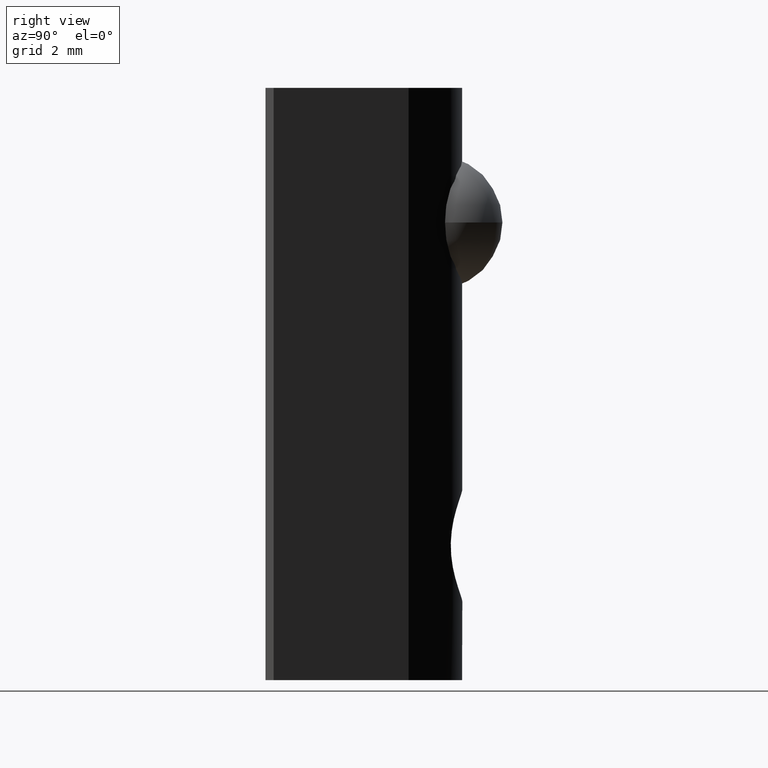
[diagram: clean part render]
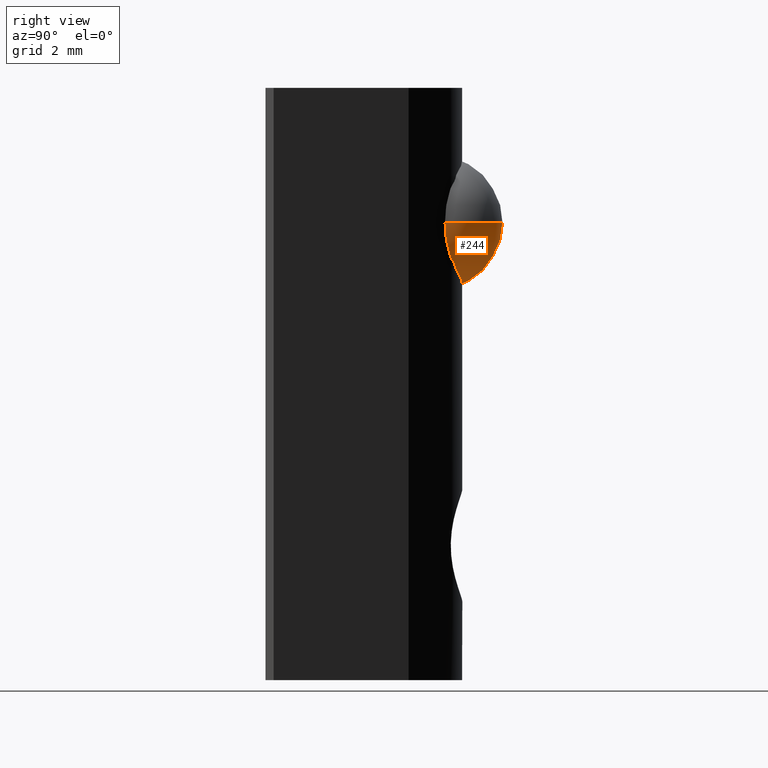
[diagram: same view with one face highlighted and labeled with its STEP entity id]
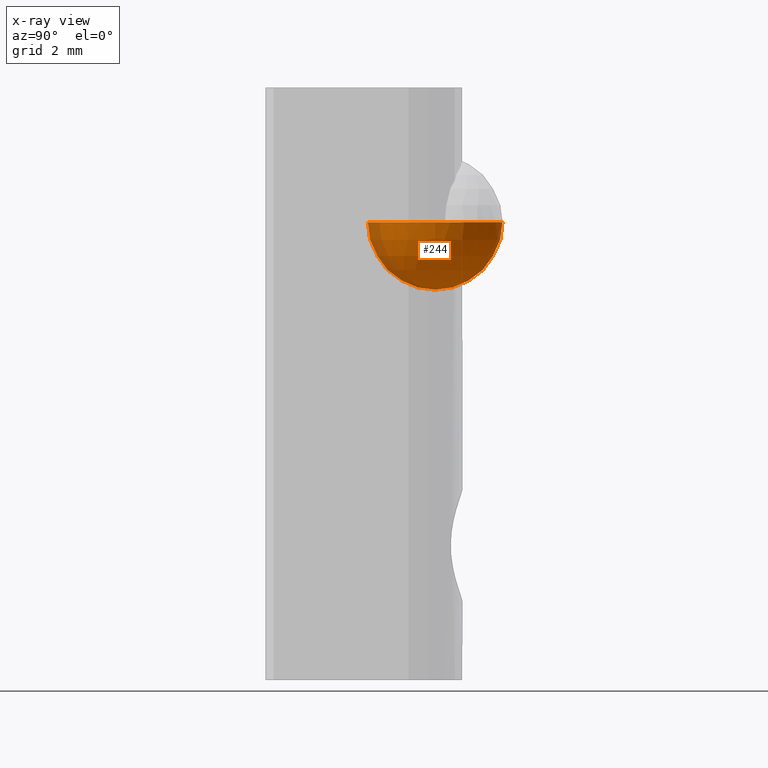
[diagram: x-ray of the same camera — body ghosted, the highlighted face saturated]
A machine part, right view. The second image highlights one B-rep face of the part: STEP entity #244.
The next image is the same camera in x-ray: the body ghosted, the highlighted face saturated — about 9% of this face is hidden behind the body in this view.
In plain terms, the highlighted spherical surface has radius 2.5 mm.
Its self-contained STEP definition (entity closure, byte-faithful):
#61 = ORIENTED_EDGE ( 'NONE', *, *, #406, .F. ) ;
#73 = DIRECTION ( 'NONE',  ( 1.000000000000000000, 0.0000000000000000000, 0.0000000000000000000 ) ) ;
#126 = DIRECTION ( 'NONE',  ( 0.0000000000000000000, 0.0000000000000000000, 1.000000000000000000 ) ) ;
#166 = CIRCLE ( 'NONE', #261, 2.500000000000000000 ) ;
#200 = VERTEX_POINT ( 'NONE', #607 ) ;
#244 = ADVANCED_FACE ( 'NONE', ( #710 ), #543, .T. ) ;
#261 = AXIS2_PLACEMENT_3D ( 'NONE', #450, #763, #319 ) ;
#319 = DIRECTION ( 'NONE',  ( -1.000000000000000000, 0.0000000000000000000, -1.224646799147353200E-016 ) ) ;
#389 = DIRECTION ( 'NONE',  ( 1.000000000000000000, 0.0000000000000000000, 0.0000000000000000000 ) ) ;
#406 = EDGE_CURVE ( 'NONE', #200, #504, #520, .T. ) ;
#424 = EDGE_CURVE ( 'NONE', #200, #504, #166, .T. ) ;
#447 = AXIS2_PLACEMENT_3D ( 'NONE', #640, #126, #73 ) ;
#450 = CARTESIAN_POINT ( 'NONE',  ( 0.0000000000000000000, 0.0000000000000000000, 0.0000000000000000000 ) ) ;
#504 = VERTEX_POINT ( 'NONE', #663 ) ;
#520 = CIRCLE ( 'NONE', #447, 2.500000000000000000 ) ;
#543 = SPHERICAL_SURFACE ( 'NONE', #554, 2.500000000000000000 ) ;
#554 = AXIS2_PLACEMENT_3D ( 'NONE', #629, #625, #389 ) ;
#555 = EDGE_LOOP ( 'NONE', ( #61, #585 ) ) ;
#585 = ORIENTED_EDGE ( 'NONE', *, *, #424, .T. ) ;
#607 = CARTESIAN_POINT ( 'NONE',  ( 1.530808498934191600E-016, -2.500000000000000000, 0.0000000000000000000 ) ) ;
#625 = DIRECTION ( 'NONE',  ( 0.0000000000000000000, 0.0000000000000000000, -1.000000000000000000 ) ) ;
#629 = CARTESIAN_POINT ( 'NONE',  ( 0.0000000000000000000, 0.0000000000000000000, 0.0000000000000000000 ) ) ;
#640 = CARTESIAN_POINT ( 'NONE',  ( 0.0000000000000000000, 0.0000000000000000000, 0.0000000000000000000 ) ) ;
#663 = CARTESIAN_POINT ( 'NONE',  ( 1.530808498934191600E-016, 2.500000000000000000, 0.0000000000000000000 ) ) ;
#710 = FACE_OUTER_BOUND ( 'NONE', #555, .T. ) ;
#763 = DIRECTION ( 'NONE',  ( 1.224646799147353200E-016, 0.0000000000000000000, -1.000000000000000000 ) ) ;